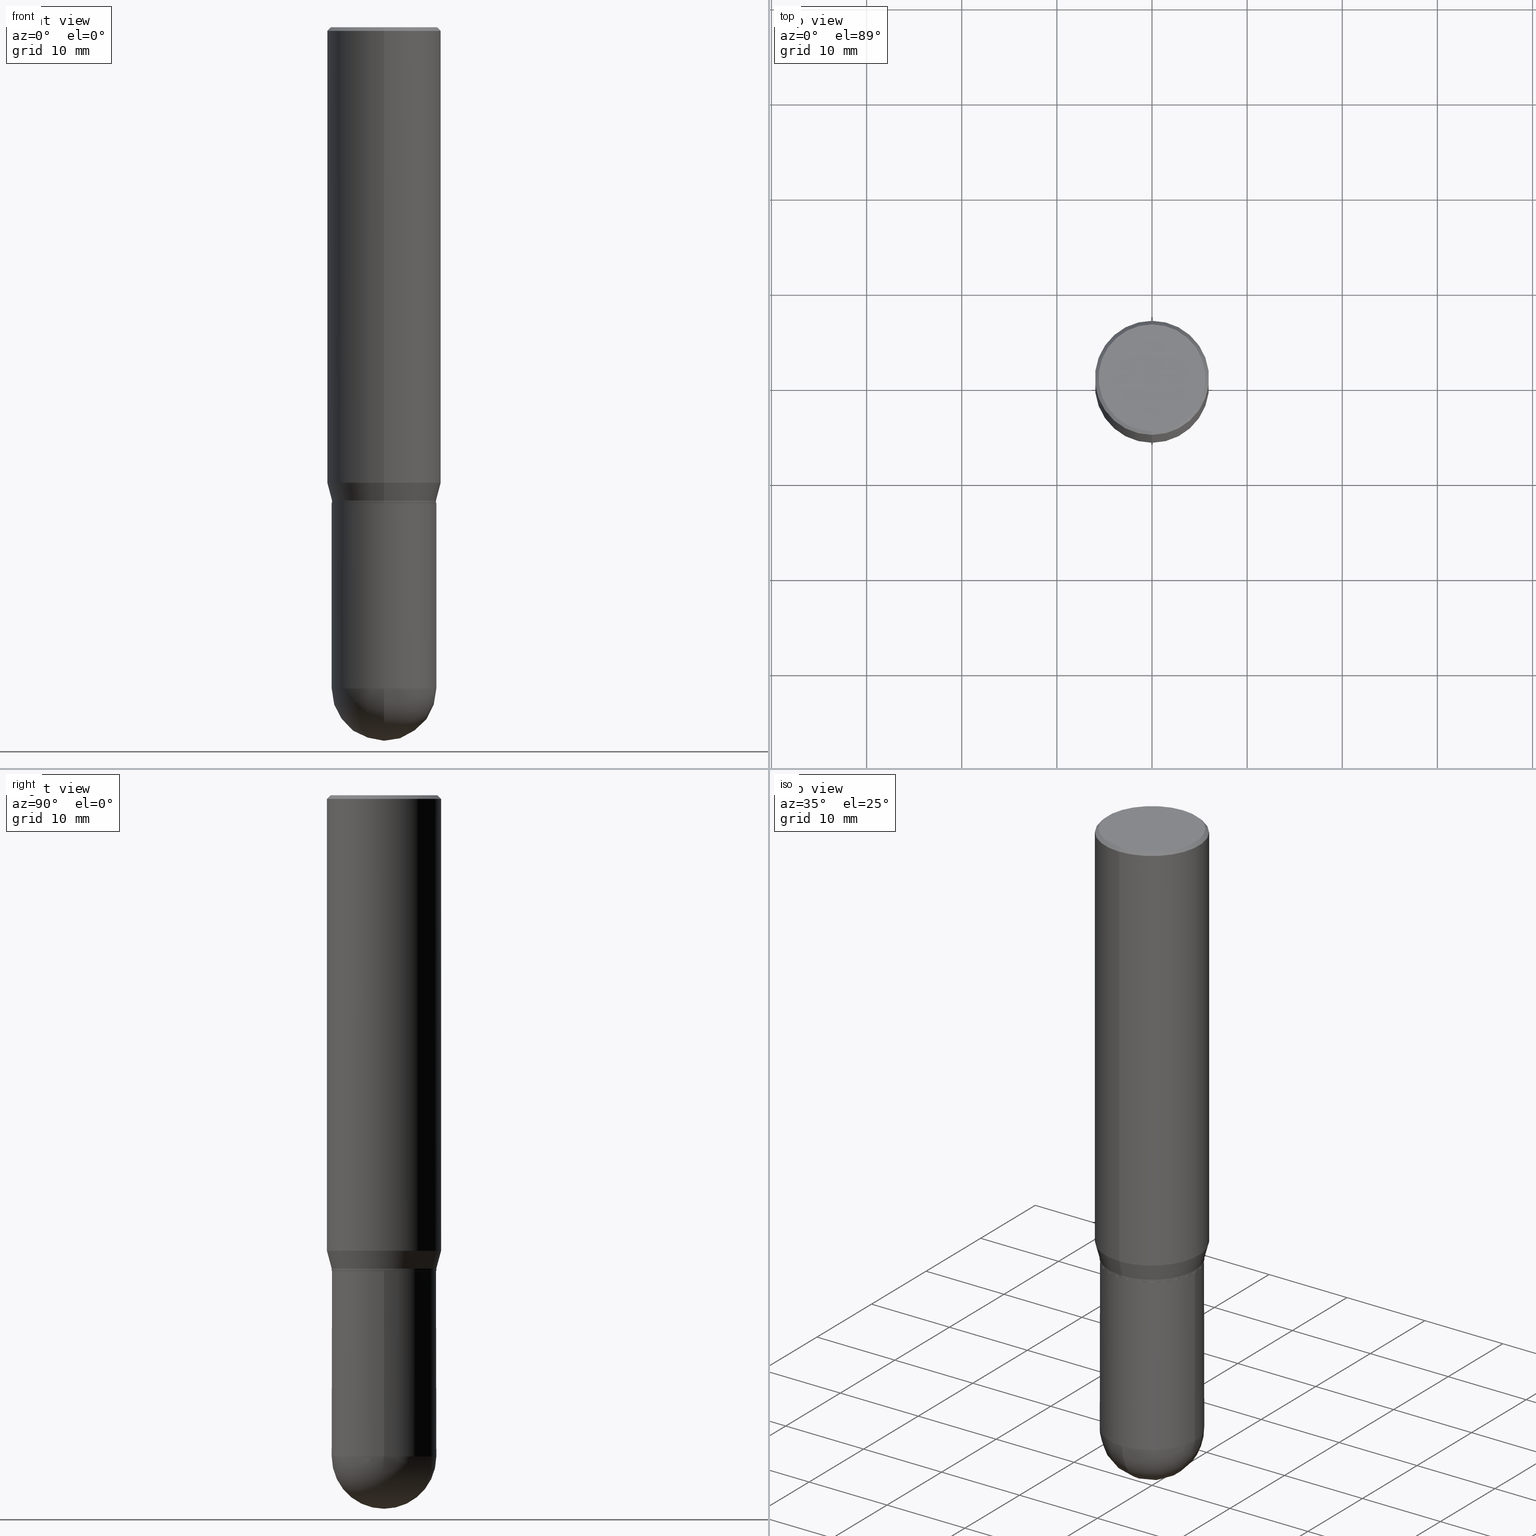
[diagram: canonical four-view strip — front | top / right | iso, engineering-drawing reading convention]
A machine part, canonical four-view strip (front | top / right | iso — engineering-drawing reading convention). The complete STEP part file that produces these views, byte-faithful:
ISO-10303-21;
HEADER;
FILE_DESCRIPTION (( 'STEP AP203' ),
    '1' );
FILE_NAME ('48834.STEP',
    '2024-03-08T13:26:36',
    ( '' ),
    ( '' ),
    'SwSTEP 2.0',
    'SolidWorks 2023',
    '' );
FILE_SCHEMA (( 'CONFIG_CONTROL_DESIGN' ));
ENDSEC;

DATA;
#1 = ORIENTED_EDGE ( 'NONE', *, *, #219, .T. ) ;
#2 = ADVANCED_FACE ( 'NONE', ( #236 ), #439, .T. ) ;
#3 = DIRECTION ( 'NONE',  ( 6.982962677686265922E-15, 1.000000000000000000, -3.491744257847858312E-15 ) ) ;
#4 = ORIENTED_EDGE ( 'NONE', *, *, #298, .F. ) ;
#5 = APPLICATION_PROTOCOL_DEFINITION ( 'international standard', 'config_control_design', 1994, #417 ) ;
#6 = DIRECTION ( 'NONE',  ( -2.445468806185136597E-29, 3.491481338843145583E-15, 1.000000000000000000 ) ) ;
#7 = DIRECTION ( 'NONE',  ( 0.000000000000000000, 0.000000000000000000, 1.000000000000000000 ) ) ;
#8 = ORIENTED_EDGE ( 'NONE', *, *, #422, .T. ) ;
#9 = CLOSED_SHELL ( 'NONE', ( #10, #65, #430, #22, #426, #266, #495, #338, #368, #124, #23, #105 ) ) ;
#10 = ADVANCED_FACE ( 'NONE', ( #278 ), #199, .T. ) ;
#11 = LINE ( 'NONE', #494, #280 ) ;
#12 = CARTESIAN_POINT ( 'NONE',  ( 3.667927816238115689E-31, -5.237616386771767056E-17, -0.01499999999999994046 ) ) ;
#13 = EDGE_CURVE ( 'NONE', #218, #18, #122, .T. ) ;
#14 = DIRECTION ( 'NONE',  ( -2.445285210825420164E-29, 3.491744257847858312E-15, 1.000000000000000000 ) ) ;
#15 = AXIS2_PLACEMENT_3D ( 'NONE', #478, #196, #366 ) ;
#16 = DIRECTION ( 'NONE',  ( -2.445285210825420164E-29, 3.491744257847858312E-15, 1.000000000000000000 ) ) ;
#17 = DATE_TIME_ROLE ( 'creation_date' ) ;
#18 = VERTEX_POINT ( 'NONE', #84 ) ;
#19 = APPROVAL ( #132, 'UNSPECIFIED' ) ;
#20 = APPROVAL_STATUS ( 'not_yet_approved' ) ;
#21 = ORIENTED_EDGE ( 'NONE', *, *, #233, .T. ) ;
#22 = ADVANCED_FACE ( 'NONE', ( #234 ), #160, .T. ) ;
#23 = ADVANCED_FACE ( 'NONE', ( #482 ), #259, .T. ) ;
#24 = AXIS2_PLACEMENT_3D ( 'NONE', #30, #231, #508 ) ;
#25 = DIRECTION ( 'NONE',  ( -2.445285210825420164E-29, 3.491744257847858312E-15, 1.000000000000000000 ) ) ;
#26 = EDGE_CURVE ( 'NONE', #410, #235, #328, .T. ) ;
#27 = CYLINDRICAL_SURFACE ( 'NONE', #24, 0.2165500000000000480 ) ;
#28 = EDGE_CURVE ( 'NONE', #18, #154, #216, .T. ) ;
#29 = CARTESIAN_POINT ( 'NONE',  ( -1.649375784469495934E-15, -0.2361999999999999933, 8.247499937036640282E-16 ) ) ;
#30 = CARTESIAN_POINT ( 'NONE',  ( 0.000000000000000000, 0.000000000000000000, 0.000000000000000000 ) ) ;
#31 = VECTOR ( 'NONE', #456, 39.37007874015748143 ) ;
#32 = VERTEX_POINT ( 'NONE', #507 ) ;
#33 = CARTESIAN_POINT ( 'NONE',  ( 3.667927816238115689E-31, -5.237616386771767056E-17, -0.01499999999999994046 ) ) ;
#34 = ORIENTED_EDGE ( 'NONE', *, *, #389, .F. ) ;
#35 = ORIENTED_EDGE ( 'NONE', *, *, #353, .T. ) ;
#36 = CARTESIAN_POINT ( 'NONE',  ( 6.691414020924076964E-29, -9.553565813409554172E-15, -2.736249999999999183 ) ) ;
#37 = DIRECTION ( 'NONE',  ( -2.445468806185136597E-29, 3.491481338843145583E-15, 1.000000000000000000 ) ) ;
#38 = ORIENTED_EDGE ( 'NONE', *, *, #133, .T. ) ;
#39 = CONICAL_SURFACE ( 'NONE', #146, 0.2361999999999999933, 0.7853981633974485010 ) ;
#40 = CARTESIAN_POINT ( 'NONE',  ( -1.649375784469495539E-15, -0.2362000000000000766, -0.01499999999999911647 ) ) ;
#41 = PRODUCT_RELATED_PRODUCT_CATEGORY ( 'detail', '', ( #172 ) ) ;
#42 = EDGE_LOOP ( 'NONE', ( #380, #501, #395, #268 ) ) ;
#43 = CIRCLE ( 'NONE', #252, 0.2165499999999999370 ) ;
#44 = DIRECTION ( 'NONE',  ( 1.839019923739599921E-15, 0.2588190451025249028, 0.9659258262890670910 ) ) ;
#45 = ORIENTED_EDGE ( 'NONE', *, *, #76, .T. ) ;
#46 = ORIENTED_EDGE ( 'NONE', *, *, #13, .F. ) ;
#47 = DIRECTION ( 'NONE',  ( -2.445285210825420164E-29, 3.491744257847858312E-15, 1.000000000000000000 ) ) ;
#48 = EDGE_CURVE ( 'NONE', #77, #248, #319, .T. ) ;
#49 = CIRCLE ( 'NONE', #350, 0.2361999999999999933 ) ;
#50 = CONICAL_SURFACE ( 'NONE', #344, 0.2165499999999996594, 0.2617993877991502405 ) ;
#51 = FACE_OUTER_BOUND ( 'NONE', #103, .T. ) ;
#52 = PLANE ( 'NONE',  #397 ) ;
#53 = CARTESIAN_POINT ( 'NONE',  ( -1.512160567852910730E-15, -0.2165500000000064873, -1.958499999999999019 ) ) ;
#54 = CARTESIAN_POINT ( 'NONE',  ( 0.2165500000000000480, -1.512160567852961414E-15, 1.055936080798610176E-29 ) ) ;
#55 = CARTESIAN_POINT ( 'NONE',  ( 4.813543937509839248E-29, -6.873498571573508138E-15, -1.968499999999999694 ) ) ;
#56 = LOCAL_TIME ( 8, 26, 36.00000000000000000, #184 ) ;
#57 = AXIS2_PLACEMENT_3D ( 'NONE', #487, #6, #96 ) ;
#58 = CARTESIAN_POINT ( 'NONE',  ( 4.813905344975440714E-29, -6.872981015512730918E-15, -1.968499999999999694 ) ) ;
#59 = DATE_TIME_ROLE ( 'classification_date' ) ;
#60 = EDGE_LOOP ( 'NONE', ( #318, #246, #140, #75 ) ) ;
#61 = PERSON_AND_ORGANIZATION ( #461, #107 ) ;
#62 = ORIENTED_EDGE ( 'NONE', *, *, #78, .F. ) ;
#63 = AXIS2_PLACEMENT_3D ( 'NONE', #241, #92, #451 ) ;
#64 = CC_DESIGN_SECURITY_CLASSIFICATION ( #208, ( #71 ) ) ;
#65 = ADVANCED_FACE ( 'NONE', ( #435 ), #406, .T. ) ;
#66 = CARTESIAN_POINT ( 'NONE',  ( 4.789091085401585240E-29, -6.838581128995030430E-15, -1.958499999999999908 ) ) ;
#67 = DIRECTION ( 'NONE',  ( 6.982962677686265922E-15, 1.000000000000000000, -2.523064413451176940E-15 ) ) ;
#68 = ORIENTED_EDGE ( 'NONE', *, *, #389, .T. ) ;
#69 = DIRECTION ( 'NONE',  ( -2.445285210825420164E-29, 3.491744257847858312E-15, 1.000000000000000000 ) ) ;
#70 = AXIS2_PLACEMENT_3D ( 'NONE', #367, #153, #274 ) ;
#71 = PRODUCT_DEFINITION_FORMATION_WITH_SPECIFIED_SOURCE ( 'ANY', '', #172, .NOT_KNOWN. ) ;
#72 = VERTEX_POINT ( 'NONE', #471 ) ;
#73 = VERTEX_POINT ( 'NONE', #452 ) ;
#74 = CARTESIAN_POINT ( 'NONE',  ( 1.536903937449144373E-15, 0.2160499999999931364, -1.968500000000000583 ) ) ;
#75 = ORIENTED_EDGE ( 'NONE', *, *, #125, .F. ) ;
#76 = EDGE_CURVE ( 'NONE', #77, #239, #93, .T. ) ;
#77 = VERTEX_POINT ( 'NONE', #493 ) ;
#78 = EDGE_CURVE ( 'NONE', #73, #248, #329, .T. ) ;
#79 = SPHERICAL_SURFACE ( 'NONE', #352, 0.2165500000000001035 ) ;
#80 = VERTEX_POINT ( 'NONE', #99 ) ;
#81 = VERTEX_POINT ( 'NONE', #139 ) ;
#82 = ADVANCED_BREP_SHAPE_REPRESENTATION ( '48834', ( #485, #144, #293 ), #424 ) ;
#83 = AXIS2_PLACEMENT_3D ( 'NONE', #36, #192, #185 ) ;
#84 = CARTESIAN_POINT ( 'NONE',  ( -1.512160567852911913E-15, -0.2165500000000067371, -1.967999999999999083 ) ) ;
#85 = CIRCLE ( 'NONE', #57, 0.2165500000000000203 ) ;
#86 = CIRCLE ( 'NONE', #321, 0.2211999999999999800 ) ;
#87 = CC_DESIGN_PERSON_AND_ORGANIZATION_ASSIGNMENT ( #343, #370, ( #172 ) ) ;
#88 = ORIENTED_EDGE ( 'NONE', *, *, #13, .T. ) ;
#89 = ORIENTED_EDGE ( 'NONE', *, *, #177, .F. ) ;
#90 = FACE_OUTER_BOUND ( 'NONE', #42, .T. ) ;
#91 = CARTESIAN_POINT ( 'NONE',  ( 1.512160567853028073E-15, 0.2165499999999904723, -2.736249999999999627 ) ) ;
#92 = DIRECTION ( 'NONE',  ( -1.000000000000000000, 6.982962677686265922E-15, -4.883557194083112340E-29 ) ) ;
#93 = LINE ( 'NONE', #54, #31 ) ;
#94 = AXIS2_PLACEMENT_3D ( 'NONE', #400, #360, #317 ) ;
#95 = APPROVAL ( #180, 'UNSPECIFIED' ) ;
#96 = DIRECTION ( 'NONE',  ( 1.000000000000000000, -6.982962677686264344E-15, 0.000000000000000000 ) ) ;
#97 = CARTESIAN_POINT ( 'NONE',  ( 0.000000000000000000, 0.000000000000000000, 0.000000000000000000 ) ) ;
#98 = DIRECTION ( 'NONE',  ( -6.982962677686265922E-15, -1.000000000000000000, 3.487819265831411744E-15 ) ) ;
#99 = CARTESIAN_POINT ( 'NONE',  ( -0.2165500000000000203, -6.674593120172645055E-15, -1.968499999999999694 ) ) ;
#100 = PERSON_AND_ORGANIZATION_ROLE ( 'creator' ) ;
#101 = AXIS2_PLACEMENT_3D ( 'NONE', #402, #37, #509 ) ;
#102 = SHAPE_DEFINITION_REPRESENTATION ( #386, #82 ) ;
#103 = EDGE_LOOP ( 'NONE', ( #279, #512 ) ) ;
#104 = CALENDAR_DATE ( 2024, 8, 3 ) ;
#105 = ADVANCED_FACE ( 'NONE', ( #294 ), #455, .T. ) ;
#106 = VERTEX_POINT ( 'NONE', #382 ) ;
#107 = ORGANIZATION ( 'UNSPECIFIED', 'UNSPECIFIED', '' ) ;
#108 = DIRECTION ( 'NONE',  ( -2.445285210825420164E-29, 3.491744257847858312E-15, 1.000000000000000000 ) ) ;
#109 = AXIS2_PLACEMENT_3D ( 'NONE', #167, #134, #130 ) ;
#110 = COORDINATED_UNIVERSAL_TIME_OFFSET ( 5, 0, .BEHIND. ) ;
#111 = DIRECTION ( 'NONE',  ( -6.982962677686266711E-15, -1.000000000000000000, 3.491744257847858312E-15 ) ) ;
#112 = CYLINDRICAL_SURFACE ( 'NONE', #242, 0.2361999999999999933 ) ;
#113 = ORIENTED_EDGE ( 'NONE', *, *, #28, .F. ) ;
#114 = EDGE_CURVE ( 'NONE', #385, #235, #170, .T. ) ;
#115 = CIRCLE ( 'NONE', #446, 0.2165500000000000203 ) ;
#116 = DIRECTION ( 'NONE',  ( -2.445285210825420164E-29, 3.491744257847858312E-15, 1.000000000000000000 ) ) ;
#117 = AXIS2_PLACEMENT_3D ( 'NONE', #470, #466, #111 ) ;
#118 = DIRECTION ( 'NONE',  ( -2.445285210825420164E-29, 3.491744257847858312E-15, 1.000000000000000000 ) ) ;
#119 = CARTESIAN_POINT ( 'NONE',  ( 4.789091085401585240E-29, -6.838581128995030430E-15, -1.958499999999999908 ) ) ;
#120 = EDGE_LOOP ( 'NONE', ( #374, #301, #404, #191 ) ) ;
#121 = ORIENTED_EDGE ( 'NONE', *, *, #217, .T. ) ;
#122 = LINE ( 'NONE', #480, #128 ) ;
#123 = EDGE_LOOP ( 'NONE', ( #34, #4, #351, #1 ) ) ;
#124 = ADVANCED_FACE ( 'NONE', ( #288 ), #52, .F. ) ;
#125 = EDGE_CURVE ( 'NONE', #235, #385, #309, .T. ) ;
#126 = LINE ( 'NONE', #136, #510 ) ;
#127 = CARTESIAN_POINT ( 'NONE',  ( 4.812321294904427164E-29, -6.871752699444585120E-15, -1.967999999999999972 ) ) ;
#128 = VECTOR ( 'NONE', #475, 39.37007874015748854 ) ;
#129 = ORIENTED_EDGE ( 'NONE', *, *, #459, .T. ) ;
#130 = DIRECTION ( 'NONE',  ( 1.000000000000000000, -6.982962677686263555E-15, 0.000000000000000000 ) ) ;
#131 = DIRECTION ( 'NONE',  ( 1.000000000000000000, -6.982962677686264344E-15, 0.000000000000000000 ) ) ;
#132 = APPROVAL_STATUS ( 'not_yet_approved' ) ;
#133 = EDGE_CURVE ( 'NONE', #80, #239, #85, .T. ) ;
#134 = DIRECTION ( 'NONE',  ( -2.445468806185136597E-29, 3.491481338843145583E-15, 1.000000000000000000 ) ) ;
#135 = DIRECTION ( 'NONE',  ( -2.445285210825420164E-29, 3.491744257847858312E-15, 1.000000000000000000 ) ) ;
#136 = CARTESIAN_POINT ( 'NONE',  ( -0.2165500000000000480, 1.538680294288497294E-15, -1.065195393794700063E-29 ) ) ;
#137 = DIRECTION ( 'NONE',  ( -2.445285210825420164E-29, 3.491744257847858312E-15, 1.000000000000000000 ) ) ;
#138 = CIRCLE ( 'NONE', #273, 0.2165500000000000480 ) ;
#139 = CARTESIAN_POINT ( 'NONE',  ( 1.678301941865403134E-15, 0.2361999999999999655, -0.01500000000000076446 ) ) ;
#140 = ORIENTED_EDGE ( 'NONE', *, *, #388, .T. ) ;
#141 = DIRECTION ( 'NONE',  ( -6.982962677686265922E-15, -1.000000000000000000, 3.487819265831411744E-15 ) ) ;
#142 = COORDINATED_UNIVERSAL_TIME_OFFSET ( 5, 0, .BEHIND. ) ;
#143 = EDGE_LOOP ( 'NONE', ( #322, #129, #88, #361 ) ) ;
#144 = MANIFOLD_SOLID_BREP ( 'Body-Move/Copy2[2]', #9 ) ;
#145 = AXIS2_PLACEMENT_3D ( 'NONE', #12, #16, #98 ) ;
#146 = AXIS2_PLACEMENT_3D ( 'NONE', #33, #503, #267 ) ;
#147 = APPROVAL_DATE_TIME ( #296, #95 ) ;
#148 = PERSON_AND_ORGANIZATION ( #461, #107 ) ;
#149 = COORDINATED_UNIVERSAL_TIME_OFFSET ( 5, 0, .BEHIND. ) ;
#150 = CIRCLE ( 'NONE', #117, 0.2211999999999999800 ) ;
#151 = CARTESIAN_POINT ( 'NONE',  ( 1.649375784469496525E-15, 0.2361999999999999378, -0.01500000000000076446 ) ) ;
#152 = DIRECTION ( 'NONE',  ( -6.982962677686265922E-15, -1.000000000000000000, 3.784596620176773299E-15 ) ) ;
#153 = DIRECTION ( 'NONE',  ( -2.445285210825420164E-29, 3.491744257847858312E-15, 1.000000000000000000 ) ) ;
#154 = VERTEX_POINT ( 'NONE', #345 ) ;
#155 = EDGE_LOOP ( 'NONE', ( #364, #355, #244, #263 ) ) ;
#156 = DIRECTION ( 'NONE',  ( -6.982962677686265922E-15, -1.000000000000000000, 3.491744257847858706E-15 ) ) ;
#157 = DIRECTION ( 'NONE',  ( -6.982962677686265922E-15, -1.000000000000000000, 3.491744257847857918E-15 ) ) ;
#158 = CARTESIAN_POINT ( 'NONE',  ( 0.000000000000000000, 0.000000000000000000, 0.000000000000000000 ) ) ;
#159 = DIRECTION ( 'NONE',  ( -1.807323732225329745E-15, -0.2588190451025181305, 0.9659258262890689783 ) ) ;
#160 = CYLINDRICAL_SURFACE ( 'NONE', #445, 0.2361999999999999933 ) ;
#161 = CARTESIAN_POINT ( 'NONE',  ( -1.512160567852959442E-15, -0.2165499999999997982, 7.561372190369530887E-16 ) ) ;
#162 = PERSON_AND_ORGANIZATION ( #461, #107 ) ;
#163 = AXIS2_PLACEMENT_3D ( 'NONE', #127, #448, #204 ) ;
#164 = SPHERICAL_SURFACE ( 'NONE', #63, 0.2165500000000001035 ) ;
#165 = CARTESIAN_POINT ( 'NONE',  ( 3.667927816238115689E-31, -5.237616386771767056E-17, -0.01499999999999994046 ) ) ;
#166 = DIMENSIONAL_EXPONENTS ( 1.000000000000000000, 0.000000000000000000, 0.000000000000000000, 0.000000000000000000, 0.000000000000000000, 0.000000000000000000, 0.000000000000000000 ) ;
#167 = CARTESIAN_POINT ( 'NONE',  ( 6.691414020924076964E-29, -9.553565813409554172E-15, -2.736249999999999183 ) ) ;
#168 = DIRECTION ( 'NONE',  ( -1.000000000000000000, 6.982962677686265922E-15, -4.876176775795935793E-29 ) ) ;
#169 = CARTESIAN_POINT ( 'NONE',  ( 1.512160567853008943E-15, 0.2165499999999931369, -1.968500000000000583 ) ) ;
#170 = CIRCLE ( 'NONE', #506, 0.2361999999999999933 ) ;
#171 = AXIS2_PLACEMENT_3D ( 'NONE', #409, #253, #3 ) ;
#172 = PRODUCT ( '48834', '48834', '', ( #247 ) ) ;
#173 = EDGE_CURVE ( 'NONE', #154, #410, #11, .T. ) ;
#174 = DIRECTION ( 'NONE',  ( 2.438088387897960049E-29, -3.491481338843145188E-15, -1.000000000000000000 ) ) ;
#175 = CALENDAR_DATE ( 2024, 8, 3 ) ;
#176 = APPROVAL_ROLE ( '' ) ;
#177 = EDGE_CURVE ( 'NONE', #277, #81, #375, .T. ) ;
#178 = APPLICATION_CONTEXT ( 'configuration controlled 3d designs of mechanical parts and assemblies' ) ;
#179 = DIRECTION ( 'NONE',  ( -6.982962677686265922E-15, -1.000000000000000000, 3.784596620176773299E-15 ) ) ;
#180 = APPROVAL_STATUS ( 'not_yet_approved' ) ;
#181 = AXIS2_PLACEMENT_3D ( 'NONE', #431, #228, #306 ) ;
#182 = ADVANCED_FACE ( 'NONE', ( #337 ), #484, .F. ) ;
#183 = CALENDAR_DATE ( 2024, 8, 3 ) ;
#184 = COORDINATED_UNIVERSAL_TIME_OFFSET ( 5, 0, .BEHIND. ) ;
#185 = DIRECTION ( 'NONE',  ( 1.000000000000000000, -6.982962677686263555E-15, 0.000000000000000000 ) ) ;
#186 = DIRECTION ( 'NONE',  ( -2.445285210825420164E-29, 3.491744257847858312E-15, 1.000000000000000000 ) ) ;
#187 = ORIENTED_EDGE ( 'NONE', *, *, #511, .T. ) ;
#188 = EDGE_CURVE ( 'NONE', #289, #154, #342, .T. ) ;
#189 = CARTESIAN_POINT ( 'NONE',  ( -1.568995892090348679E-15, -0.2211999999999999800, 8.327766115919414367E-16 ) ) ;
#190 = CARTESIAN_POINT ( 'NONE',  ( 0.000000000000000000, 0.000000000000000000, 0.000000000000000000 ) ) ;
#191 = ORIENTED_EDGE ( 'NONE', *, *, #219, .F. ) ;
#192 = DIRECTION ( 'NONE',  ( -2.445468806185136597E-29, 3.491481338843145583E-15, 1.000000000000000000 ) ) ;
#193 = EDGE_LOOP ( 'NONE', ( #62, #121, #304, #477 ) ) ;
#194 = ORIENTED_EDGE ( 'NONE', *, *, #275, .T. ) ;
#195 = AXIS2_PLACEMENT_3D ( 'NONE', #224, #25, #179 ) ;
#196 = DIRECTION ( 'NONE',  ( -2.445285210825420164E-29, 3.491744257847858312E-15, 1.000000000000000000 ) ) ;
#197 = AXIS2_PLACEMENT_3D ( 'NONE', #418, #292, #213 ) ;
#198 = APPROVAL_PERSON_ORGANIZATION ( #148, #95, #176 ) ;
#199 = CYLINDRICAL_SURFACE ( 'NONE', #250, 0.2165499999999997982 ) ;
#200 =( LENGTH_UNIT ( ) NAMED_UNIT ( * ) SI_UNIT ( $, .METRE. ) );
#201 = EDGE_LOOP ( 'NONE', ( #222, #472 ) ) ;
#202 = ORIENTED_EDGE ( 'NONE', *, *, #462, .T. ) ;
#203 = DIRECTION ( 'NONE',  ( -4.851104656540965064E-15, -0.7071067811865501263, -0.7071067811865449082 ) ) ;
#204 = DIRECTION ( 'NONE',  ( -6.982962677686265922E-15, -1.000000000000000000, 3.784596620176768566E-15 ) ) ;
#205 = ORIENTED_EDGE ( 'NONE', *, *, #114, .T. ) ;
#206 = VECTOR ( 'NONE', #254, 39.37007874015748854 ) ;
#207 = CARTESIAN_POINT ( 'NONE',  ( -1.508669086514069695E-15, -0.2160500000000068754, -1.968499999999999028 ) ) ;
#208 = SECURITY_CLASSIFICATION ( '', '', #419 ) ;
#209 = ORIENTED_EDGE ( 'NONE', *, *, #177, .T. ) ;
#210 = DIRECTION ( 'NONE',  ( 1.000000000000000000, -6.982962677686263555E-15, 0.000000000000000000 ) ) ;
#211 = CARTESIAN_POINT ( 'NONE',  ( 4.609766587511666285E-29, -6.582514767890587986E-15, -1.885165201631270548 ) ) ;
#212 = APPLICATION_PROTOCOL_DEFINITION ( 'international standard', 'config_control_design', 1994, #178 ) ;
#213 = DIRECTION ( 'NONE',  ( 6.982962677686265922E-15, 1.000000000000000000, 0.000000000000000000 ) ) ;
#214 = DIRECTION ( 'NONE',  ( -6.982962677686265922E-15, -1.000000000000000000, 3.491744257847858312E-15 ) ) ;
#215 = PERSON_AND_ORGANIZATION_ROLE ( 'creator' ) ;
#216 = CIRCLE ( 'NONE', #163, 0.2165499999999999370 ) ;
#217 = EDGE_CURVE ( 'NONE', #73, #505, #498, .T. ) ;
#218 = VERTEX_POINT ( 'NONE', #207 ) ;
#219 = EDGE_CURVE ( 'NONE', #81, #277, #49, .T. ) ;
#220 = DATE_AND_TIME ( #175, #56 ) ;
#221 = CC_DESIGN_APPROVAL ( #19, ( #227 ) ) ;
#222 = ORIENTED_EDGE ( 'NONE', *, *, #511, .F. ) ;
#223 = AXIS2_PLACEMENT_3D ( 'NONE', #333, #453, #287 ) ;
#224 = CARTESIAN_POINT ( 'NONE',  ( 4.789091085401585240E-29, -6.838581128995030430E-15, -1.958499999999999908 ) ) ;
#225 = ORIENTED_EDGE ( 'NONE', *, *, #78, .T. ) ;
#226 = EDGE_CURVE ( 'NONE', #239, #80, #115, .T. ) ;
#227 = PRODUCT_DEFINITION ( 'UNKNOWN', '', #71, #423 ) ;
#228 = DIRECTION ( 'NONE',  ( -2.445285210825420164E-29, 3.491744257847858312E-15, 1.000000000000000000 ) ) ;
#229 = CARTESIAN_POINT ( 'NONE',  ( 6.672895394931898871E-29, -9.580085539845092024E-15, -2.736249999999999627 ) ) ;
#230 = ORIENTED_EDGE ( 'NONE', *, *, #297, .F. ) ;
#231 = DIRECTION ( 'NONE',  ( -2.445468806185136597E-29, 3.491481338843145583E-15, 1.000000000000000000 ) ) ;
#232 = CARTESIAN_POINT ( 'NONE',  ( 4.812321294904427164E-29, -6.871752699444585120E-15, -1.967999999999999972 ) ) ;
#233 = EDGE_CURVE ( 'NONE', #18, #106, #373, .T. ) ;
#234 = FACE_OUTER_BOUND ( 'NONE', #282, .T. ) ;
#235 = VERTEX_POINT ( 'NONE', #331 ) ;
#236 = FACE_OUTER_BOUND ( 'NONE', #442, .T. ) ;
#237 = ORIENTED_EDGE ( 'NONE', *, *, #291, .F. ) ;
#238 = ORIENTED_EDGE ( 'NONE', *, *, #469, .F. ) ;
#239 = VERTEX_POINT ( 'NONE', #450 ) ;
#240 = VECTOR ( 'NONE', #159, 39.37007874015748143 ) ;
#241 = CARTESIAN_POINT ( 'NONE',  ( 6.672895394931898871E-29, -9.580085539845092024E-15, -2.736249999999999627 ) ) ;
#242 = AXIS2_PLACEMENT_3D ( 'NONE', #269, #398, #157 ) ;
#243 = DIRECTION ( 'NONE',  ( -6.982962677686265922E-15, -1.000000000000000000, 3.491744257847857918E-15 ) ) ;
#244 = ORIENTED_EDGE ( 'NONE', *, *, #436, .F. ) ;
#245 = PLANE ( 'NONE',  #171 ) ;
#246 = ORIENTED_EDGE ( 'NONE', *, *, #286, .T. ) ;
#247 = MECHANICAL_CONTEXT ( 'NONE', #178, 'mechanical' ) ;
#248 = VERTEX_POINT ( 'NONE', #91 ) ;
#249 = CARTESIAN_POINT ( 'NONE',  ( 1.535127580609744318E-15, 0.2160499999999931364, -1.968500000000000583 ) ) ;
#250 = AXIS2_PLACEMENT_3D ( 'NONE', #158, #118, #156 ) ;
#251 = CARTESIAN_POINT ( 'NONE',  ( 0.000000000000000000, 0.000000000000000000, 0.000000000000000000 ) ) ;
#252 = AXIS2_PLACEMENT_3D ( 'NONE', #232, #116, #316 ) ;
#253 = DIRECTION ( 'NONE',  ( 2.445285210825419883E-29, -3.491744257847858312E-15, -1.000000000000000000 ) ) ;
#254 = DIRECTION ( 'NONE',  ( 5.024295867788231995E-15, 0.7071067811865739960, 0.7071067811865208164 ) ) ;
#255 = DIRECTION ( 'NONE',  ( 1.000000000000000000, 0.000000000000000000, 0.000000000000000000 ) ) ;
#256 = DIRECTION ( 'NONE',  ( -6.982962677686265922E-15, -1.000000000000000000, 3.491744257847858706E-15 ) ) ;
#257 = DIRECTION ( 'NONE',  ( -2.445285210825420164E-29, 3.491744257847858312E-15, 1.000000000000000000 ) ) ;
#258 = PERSON_AND_ORGANIZATION ( #461, #107 ) ;
#259 = CONICAL_SURFACE ( 'NONE', #70, 0.2160500000000000198, 0.7853981633974824739 ) ;
#260 = EDGE_LOOP ( 'NONE', ( #238, #68, #209, #230 ) ) ;
#261 = COORDINATED_UNIVERSAL_TIME_OFFSET ( 5, 0, .BEHIND. ) ;
#262 = AXIS2_PLACEMENT_3D ( 'NONE', #119, #399, #359 ) ;
#263 = ORIENTED_EDGE ( 'NONE', *, *, #233, .F. ) ;
#264 = VECTOR ( 'NONE', #203, 39.37007874015748143 ) ;
#265 = CC_DESIGN_PERSON_AND_ORGANIZATION_ASSIGNMENT ( #61, #100, ( #227 ) ) ;
#266 = ADVANCED_FACE ( 'NONE', ( #416 ), #50, .T. ) ;
#267 = DIRECTION ( 'NONE',  ( 6.982962677686265922E-15, 1.000000000000000000, -3.487819265831411744E-15 ) ) ;
#268 = ORIENTED_EDGE ( 'NONE', *, *, #388, .F. ) ;
#269 = CARTESIAN_POINT ( 'NONE',  ( 0.000000000000000000, 0.000000000000000000, 0.000000000000000000 ) ) ;
#270 = DIRECTION ( 'NONE',  ( 1.000000000000000000, -6.982962677686263555E-15, 0.000000000000000000 ) ) ;
#271 = ADVANCED_FACE ( 'NONE', ( #474 ), #79, .T. ) ;
#272 = AXIS2_PLACEMENT_3D ( 'NONE', #489, #454, #285 ) ;
#273 = AXIS2_PLACEMENT_3D ( 'NONE', #369, #414, #210 ) ;
#274 = DIRECTION ( 'NONE',  ( -6.982962677686265922E-15, -1.000000000000000000, 3.793355233044567490E-15 ) ) ;
#275 = EDGE_CURVE ( 'NONE', #154, #18, #43, .T. ) ;
#276 = ORIENTED_EDGE ( 'NONE', *, *, #335, .F. ) ;
#277 = VERTEX_POINT ( 'NONE', #40 ) ;
#278 = FACE_OUTER_BOUND ( 'NONE', #155, .T. ) ;
#279 = ORIENTED_EDGE ( 'NONE', *, *, #298, .T. ) ;
#280 = VECTOR ( 'NONE', #135, 39.37007874015748143 ) ;
#281 = FACE_OUTER_BOUND ( 'NONE', #123, .T. ) ;
#282 = EDGE_LOOP ( 'NONE', ( #205, #8, #89, #237 ) ) ;
#283 = ORIENTED_EDGE ( 'NONE', *, *, #188, .T. ) ;
#284 = DIRECTION ( 'NONE',  ( -2.445285210825420164E-29, 3.491744257847858312E-15, 1.000000000000000000 ) ) ;
#285 = DIRECTION ( 'NONE',  ( -7.105427357601001070E-15, -1.000000000000000000, 0.000000000000000000 ) ) ;
#286 = EDGE_CURVE ( 'NONE', #410, #106, #492, .T. ) ;
#287 = DIRECTION ( 'NONE',  ( 6.982962677686265922E-15, 1.000000000000000000, -3.487819265831411744E-15 ) ) ;
#288 = FACE_OUTER_BOUND ( 'NONE', #201, .T. ) ;
#289 = VERTEX_POINT ( 'NONE', #74 ) ;
#290 = VECTOR ( 'NONE', #186, 39.37007874015748143 ) ;
#291 = EDGE_CURVE ( 'NONE', #385, #277, #479, .T. ) ;
#292 = DIRECTION ( 'NONE',  ( 1.000000000000000000, -6.982962677686265922E-15, 4.883557194083112340E-29 ) ) ;
#293 = AXIS2_PLACEMENT_3D ( 'NONE', #97, #7, #255 ) ;
#294 = FACE_OUTER_BOUND ( 'NONE', #433, .T. ) ;
#295 = DIRECTION ( 'NONE',  ( -2.445468806185136597E-29, 3.491481338843145583E-15, 1.000000000000000000 ) ) ;
#296 = DATE_AND_TIME ( #183, #376 ) ;
#297 = EDGE_CURVE ( 'NONE', #72, #81, #356, .T. ) ;
#298 = EDGE_CURVE ( 'NONE', #72, #488, #150, .T. ) ;
#299 = CALENDAR_DATE ( 2024, 8, 3 ) ;
#300 = AXIS2_PLACEMENT_3D ( 'NONE', #211, #379, #377 ) ;
#301 = ORIENTED_EDGE ( 'NONE', *, *, #125, .T. ) ;
#302 = VECTOR ( 'NONE', #312, 39.37007874015748143 ) ;
#303 = APPROVAL_DATE_TIME ( #504, #19 ) ;
#304 = ORIENTED_EDGE ( 'NONE', *, *, #462, .F. ) ;
#305 = CC_DESIGN_DATE_AND_TIME_ASSIGNMENT ( #496, #17, ( #227 ) ) ;
#306 = DIRECTION ( 'NONE',  ( -6.982962677686265922E-15, -1.000000000000000000, 3.793355233044567490E-15 ) ) ;
#307 = DATE_AND_TIME ( #387, #490 ) ;
#308 = CIRCLE ( 'NONE', #83, 0.2165500000000000480 ) ;
#309 = CIRCLE ( 'NONE', #300, 0.2361999999999999933 ) ;
#310 = UNCERTAINTY_MEASURE_WITH_UNIT (LENGTH_MEASURE( 1.000000000000000082E-05 ), #476, 'distance_accuracy_value', 'NONE');
#311 = VECTOR ( 'NONE', #334, 39.37007874015748143 ) ;
#312 = DIRECTION ( 'NONE',  ( 4.937700262164548831E-15, 0.7071067811865452413, -0.7071067811865497932 ) ) ;
#313 = DIRECTION ( 'NONE',  ( -6.982962677686266711E-15, -1.000000000000000000, 3.491744257847858312E-15 ) ) ;
#314 = DIRECTION ( 'NONE',  ( -1.000000000000000000, 6.982962677686265922E-15, -4.883557194083112340E-29 ) ) ;
#315 = CARTESIAN_POINT ( 'NONE',  ( 6.691414020924076964E-29, -9.553565813409554172E-15, -2.736249999999999183 ) ) ;
#316 = DIRECTION ( 'NONE',  ( -6.982962677686265922E-15, -1.000000000000000000, 3.784596620176768566E-15 ) ) ;
#317 = DIRECTION ( 'NONE',  ( -6.982962677686265922E-15, -1.000000000000000000, 3.793355233044567490E-15 ) ) ;
#318 = ORIENTED_EDGE ( 'NONE', *, *, #26, .F. ) ;
#319 = CIRCLE ( 'NONE', #341, 0.2165500000000000480 ) ;
#320 = ADVANCED_FACE ( 'NONE', ( #486 ), #164, .T. ) ;
#321 = AXIS2_PLACEMENT_3D ( 'NONE', #463, #108, #313 ) ;
#322 = ORIENTED_EDGE ( 'NONE', *, *, #188, .F. ) ;
#323 = LENGTH_MEASURE_WITH_UNIT ( LENGTH_MEASURE( 0.02539999999999999897 ), #200 );
#324 = ORIENTED_EDGE ( 'NONE', *, *, #358, .T. ) ;
#325 = CARTESIAN_POINT ( 'NONE',  ( -1.538680294288430240E-15, -0.2165500000000096792, -2.736249999999998295 ) ) ;
#326 = ORIENTED_EDGE ( 'NONE', *, *, #48, .F. ) ;
#327 = LINE ( 'NONE', #481, #264 ) ;
#328 = LINE ( 'NONE', #408, #425 ) ;
#329 = CIRCLE ( 'NONE', #197, 0.2165500000000001035 ) ;
#330 = CARTESIAN_POINT ( 'NONE',  ( 1.678301941865356394E-15, 0.2361999999999999933, -8.247499937036640282E-16 ) ) ;
#331 = CARTESIAN_POINT ( 'NONE',  ( 1.678301941865402543E-15, 0.2361999999999934430, -1.885165201631271215 ) ) ;
#332 = EDGE_LOOP ( 'NONE', ( #444, #225, #326, #276 ) ) ;
#333 = CARTESIAN_POINT ( 'NONE',  ( 3.667927816238115689E-31, -5.237616386771767056E-17, -0.01499999999999994046 ) ) ;
#334 = DIRECTION ( 'NONE',  ( -2.445285210825420164E-29, 3.491744257847858312E-15, 1.000000000000000000 ) ) ;
#335 = EDGE_CURVE ( 'NONE', #505, #77, #413, .T. ) ;
#336 = LINE ( 'NONE', #53, #240 ) ;
#337 = FACE_OUTER_BOUND ( 'NONE', #411, .T. ) ;
#338 = ADVANCED_FACE ( 'NONE', ( #281 ), #407, .T. ) ;
#339 = CIRCLE ( 'NONE', #181, 0.2160500000000000198 ) ;
#340 = APPROVAL_PERSON_ORGANIZATION ( #258, #421, #384 ) ;
#341 = AXIS2_PLACEMENT_3D ( 'NONE', #315, #468, #270 ) ;
#342 = LINE ( 'NONE', #249, #206 ) ;
#343 = PERSON_AND_ORGANIZATION ( #461, #107 ) ;
#344 = AXIS2_PLACEMENT_3D ( 'NONE', #412, #47, #434 ) ;
#345 = CARTESIAN_POINT ( 'NONE',  ( 1.538680294288544822E-15, 0.2165499999999931369, -1.968000000000000638 ) ) ;
#346 = APPROVAL_ROLE ( '' ) ;
#347 = CC_DESIGN_PERSON_AND_ORGANIZATION_ASSIGNMENT ( #457, #391, ( #71 ) ) ;
#348 = PERSON_AND_ORGANIZATION_ROLE ( 'classification_officer' ) ;
#349 = PERSON_AND_ORGANIZATION ( #461, #107 ) ;
#350 = AXIS2_PLACEMENT_3D ( 'NONE', #165, #137, #141 ) ;
#351 = ORIENTED_EDGE ( 'NONE', *, *, #297, .T. ) ;
#352 = AXIS2_PLACEMENT_3D ( 'NONE', #229, #314, #67 ) ;
#353 = EDGE_CURVE ( 'NONE', #248, #32, #138, .T. ) ;
#354 = PERSON_AND_ORGANIZATION ( #461, #107 ) ;
#355 = ORIENTED_EDGE ( 'NONE', *, *, #173, .T. ) ;
#356 = LINE ( 'NONE', #151, #302 ) ;
#357 =( NAMED_UNIT ( * ) SI_UNIT ( $, .STERADIAN. ) SOLID_ANGLE_UNIT ( ) );
#358 = EDGE_CURVE ( 'NONE', #32, #80, #126, .T. ) ;
#359 = DIRECTION ( 'NONE',  ( -6.982962677686265922E-15, -1.000000000000000000, 3.784596620176773299E-15 ) ) ;
#360 = DIRECTION ( 'NONE',  ( -2.445285210825420164E-29, 3.491744257847858312E-15, 1.000000000000000000 ) ) ;
#361 = ORIENTED_EDGE ( 'NONE', *, *, #275, .F. ) ;
#362 = EDGE_LOOP ( 'NONE', ( #35, #324, #449, #443, #393 ) ) ;
#363 = VECTOR ( 'NONE', #284, 39.37007874015748143 ) ;
#364 = ORIENTED_EDGE ( 'NONE', *, *, #28, .T. ) ;
#365 = APPROVAL_PERSON_ORGANIZATION ( #162, #19, #346 ) ;
#366 = DIRECTION ( 'NONE',  ( -6.982962677686265922E-15, -1.000000000000000000, 3.793355233044567490E-15 ) ) ;
#367 = CARTESIAN_POINT ( 'NONE',  ( 4.813543937509839248E-29, -6.873498571573508138E-15, -1.968499999999999694 ) ) ;
#368 = ADVANCED_FACE ( 'NONE', ( #51 ), #245, .F. ) ;
#369 = CARTESIAN_POINT ( 'NONE',  ( 6.691414020924076964E-29, -9.553565813409554172E-15, -2.736249999999999183 ) ) ;
#370 = PERSON_AND_ORGANIZATION_ROLE ( 'design_owner' ) ;
#371 = ORIENTED_EDGE ( 'NONE', *, *, #335, .T. ) ;
#372 = LINE ( 'NONE', #330, #363 ) ;
#373 = LINE ( 'NONE', #161, #311 ) ;
#374 = ORIENTED_EDGE ( 'NONE', *, *, #422, .F. ) ;
#375 = CIRCLE ( 'NONE', #145, 0.2361999999999999933 ) ;
#376 = LOCAL_TIME ( 8, 26, 36.00000000000000000, #142 ) ;
#377 = DIRECTION ( 'NONE',  ( -6.982962677686265922E-15, -1.000000000000000000, 3.469747663417777397E-15 ) ) ;
#378 = CARTESIAN_POINT ( 'NONE',  ( -1.649375784469449785E-15, -0.2362000000000065436, -1.885165201631269660 ) ) ;
#379 = DIRECTION ( 'NONE',  ( -2.445285210825420164E-29, 3.491744257847858312E-15, 1.000000000000000000 ) ) ;
#380 = ORIENTED_EDGE ( 'NONE', *, *, #436, .T. ) ;
#381 = DIRECTION ( 'NONE',  ( -2.445468806185136877E-29, 3.491481338843145188E-15, 1.000000000000000000 ) ) ;
#382 = CARTESIAN_POINT ( 'NONE',  ( -1.512160567852910730E-15, -0.2165500000000064873, -1.958499999999999019 ) ) ;
#383 = DIRECTION ( 'NONE',  ( -6.982962677686265922E-15, -1.000000000000000000, 3.469747663417777397E-15 ) ) ;
#384 = APPROVAL_ROLE ( '' ) ;
#385 = VERTEX_POINT ( 'NONE', #378 ) ;
#386 = PRODUCT_DEFINITION_SHAPE ( 'NONE', 'NONE',  #227 ) ;
#387 = CALENDAR_DATE ( 2024, 8, 3 ) ;
#388 = EDGE_CURVE ( 'NONE', #106, #385, #336, .T. ) ;
#389 = EDGE_CURVE ( 'NONE', #488, #277, #327, .T. ) ;
#390 = CC_DESIGN_APPROVAL ( #421, ( #208 ) ) ;
#391 = PERSON_AND_ORGANIZATION_ROLE ( 'design_supplier' ) ;
#392 = CLOSED_SHELL ( 'NONE', ( #458, #271, #182, #320, #2 ) ) ;
#393 = ORIENTED_EDGE ( 'NONE', *, *, #48, .T. ) ;
#394 = CIRCLE ( 'NONE', #15, 0.2160500000000000198 ) ;
#395 = ORIENTED_EDGE ( 'NONE', *, *, #114, .F. ) ;
#396 =( NAMED_UNIT ( * ) PLANE_ANGLE_UNIT ( ) SI_UNIT ( $, .RADIAN. ) );
#397 = AXIS2_PLACEMENT_3D ( 'NONE', #55, #420, #214 ) ;
#398 = DIRECTION ( 'NONE',  ( -2.445285210825420164E-29, 3.491744257847858312E-15, 1.000000000000000000 ) ) ;
#399 = DIRECTION ( 'NONE',  ( -2.445285210825420164E-29, 3.491744257847858312E-15, 1.000000000000000000 ) ) ;
#400 = CARTESIAN_POINT ( 'NONE',  ( 4.813543937509839248E-29, -6.873498571573508138E-15, -1.968499999999999694 ) ) ;
#401 = FACE_OUTER_BOUND ( 'NONE', #362, .T. ) ;
#402 = CARTESIAN_POINT ( 'NONE',  ( 0.000000000000000000, 0.000000000000000000, 0.000000000000000000 ) ) ;
#403 = EDGE_LOOP ( 'NONE', ( #187, #283, #113, #46 ) ) ;
#404 = ORIENTED_EDGE ( 'NONE', *, *, #291, .T. ) ;
#405 = LOCAL_TIME ( 8, 26, 36.00000000000000000, #110 ) ;
#406 = CONICAL_SURFACE ( 'NONE', #94, 0.2160500000000000198, 0.7853981633974824739 ) ;
#407 = CONICAL_SURFACE ( 'NONE', #223, 0.2361999999999999933, 0.7853981633974485010 ) ;
#408 = CARTESIAN_POINT ( 'NONE',  ( 1.538680294288542061E-15, 0.2165499999999928316, -1.958500000000000796 ) ) ;
#409 = CARTESIAN_POINT ( 'NONE',  ( 1.544631344304201972E-15, 0.2211999999999999800, -7.421724389579486086E-16 ) ) ;
#410 = VERTEX_POINT ( 'NONE', #447 ) ;
#411 = EDGE_LOOP ( 'NONE', ( #500, #38 ) ) ;
#412 = CARTESIAN_POINT ( 'NONE',  ( 4.789091085401585240E-29, -6.838581128995030430E-15, -1.958499999999999908 ) ) ;
#413 = CIRCLE ( 'NONE', #109, 0.2165500000000000480 ) ;
#414 = DIRECTION ( 'NONE',  ( -2.445468806185136597E-29, 3.491481338843145583E-15, 1.000000000000000000 ) ) ;
#415 = CARTESIAN_POINT ( 'NONE',  ( 4.609766587511666285E-29, -6.582514767890587986E-15, -1.885165201631270548 ) ) ;
#416 = FACE_OUTER_BOUND ( 'NONE', #60, .T. ) ;
#417 = APPLICATION_CONTEXT ( 'configuration controlled 3d designs of mechanical parts and assemblies' ) ;
#418 = CARTESIAN_POINT ( 'NONE',  ( 6.672895394931898871E-29, -9.580085539845092024E-15, -2.736249999999999627 ) ) ;
#419 = SECURITY_CLASSIFICATION_LEVEL ( 'unclassified' ) ;
#420 = DIRECTION ( 'NONE',  ( -2.445285210825419883E-29, 3.491744257847858312E-15, 1.000000000000000000 ) ) ;
#421 = APPROVAL ( #20, 'UNSPECIFIED' ) ;
#422 = EDGE_CURVE ( 'NONE', #235, #81, #372, .T. ) ;
#423 = DESIGN_CONTEXT ( 'detailed design', #417, 'design' ) ;
#424 =( GEOMETRIC_REPRESENTATION_CONTEXT ( 3 ) GLOBAL_UNCERTAINTY_ASSIGNED_CONTEXT ( ( #310 ) ) GLOBAL_UNIT_ASSIGNED_CONTEXT ( ( #476, #396, #357 ) ) REPRESENTATION_CONTEXT ( 'NONE', 'WORKASPACE' ) );
#425 = VECTOR ( 'NONE', #44, 39.37007874015748143 ) ;
#426 = ADVANCED_FACE ( 'NONE', ( #90 ), #473, .T. ) ;
#427 = LOCAL_TIME ( 8, 26, 36.00000000000000000, #261 ) ;
#428 = CC_DESIGN_DATE_AND_TIME_ASSIGNMENT ( #307, #59, ( #208 ) ) ;
#429 = ORIENTED_EDGE ( 'NONE', *, *, #286, .F. ) ;
#430 = ADVANCED_FACE ( 'NONE', ( #499 ), #39, .T. ) ;
#431 = CARTESIAN_POINT ( 'NONE',  ( 4.813543937509839248E-29, -6.873498571573508138E-15, -1.968499999999999694 ) ) ;
#432 = CC_DESIGN_PERSON_AND_ORGANIZATION_ASSIGNMENT ( #349, #215, ( #71 ) ) ;
#433 = EDGE_LOOP ( 'NONE', ( #483, #194, #21, #429 ) ) ;
#434 = DIRECTION ( 'NONE',  ( -6.982962677686265922E-15, -1.000000000000000000, 3.784596620176773299E-15 ) ) ;
#435 = FACE_OUTER_BOUND ( 'NONE', #403, .T. ) ;
#436 = EDGE_CURVE ( 'NONE', #106, #410, #464, .T. ) ;
#437 = AXIS2_PLACEMENT_3D ( 'NONE', #169, #174, #168 ) ;
#438 = CC_DESIGN_APPROVAL ( #95, ( #71 ) ) ;
#439 = CYLINDRICAL_SURFACE ( 'NONE', #101, 0.2165500000000000480 ) ;
#440 = ORIENTED_EDGE ( 'NONE', *, *, #133, .F. ) ;
#441 = DIRECTION ( 'NONE',  ( -2.445285210825420164E-29, 3.491744257847858312E-15, 1.000000000000000000 ) ) ;
#442 = EDGE_LOOP ( 'NONE', ( #460, #202, #371, #45, #440 ) ) ;
#443 = ORIENTED_EDGE ( 'NONE', *, *, #76, .F. ) ;
#444 = ORIENTED_EDGE ( 'NONE', *, *, #217, .F. ) ;
#445 = AXIS2_PLACEMENT_3D ( 'NONE', #190, #441, #243 ) ;
#446 = AXIS2_PLACEMENT_3D ( 'NONE', #58, #295, #131 ) ;
#447 = CARTESIAN_POINT ( 'NONE',  ( 1.608491118076972302E-15, 0.2165499999999928316, -1.958500000000000796 ) ) ;
#448 = DIRECTION ( 'NONE',  ( -2.445285210825420164E-29, 3.491744257847858312E-15, 1.000000000000000000 ) ) ;
#449 = ORIENTED_EDGE ( 'NONE', *, *, #226, .F. ) ;
#450 = CARTESIAN_POINT ( 'NONE',  ( 0.2165500000000000203, -8.385141583365692530E-15, -1.968499999999999694 ) ) ;
#451 = DIRECTION ( 'NONE',  ( 6.982962677686265922E-15, 1.000000000000000000, -2.523064413451176940E-15 ) ) ;
#452 = CARTESIAN_POINT ( 'NONE',  ( 7.211720977907380015E-29, -1.032290596055380666E-14, -2.952799999999999869 ) ) ;
#453 = DIRECTION ( 'NONE',  ( 2.445285210825420164E-29, -3.491744257847858312E-15, -1.000000000000000000 ) ) ;
#454 = DIRECTION ( 'NONE',  ( -1.000000000000000000, 7.105427357601001070E-15, -4.926315508542082329E-29 ) ) ;
#455 = CYLINDRICAL_SURFACE ( 'NONE', #491, 0.2165499999999997982 ) ;
#456 = DIRECTION ( 'NONE',  ( -2.445468806185136877E-29, 3.491481338843145188E-15, 1.000000000000000000 ) ) ;
#457 = PERSON_AND_ORGANIZATION ( #461, #107 ) ;
#458 = ADVANCED_FACE ( 'NONE', ( #401 ), #27, .T. ) ;
#459 = EDGE_CURVE ( 'NONE', #289, #218, #339, .T. ) ;
#460 = ORIENTED_EDGE ( 'NONE', *, *, #358, .F. ) ;
#461 = PERSON ( 'UNSPECIFIED', 'UNSPECIFIED', 'UNSPECIFIED', ('UNSPECIFIED'), ('UNSPECIFIED'), ('UNSPECIFIED') ) ;
#462 = EDGE_CURVE ( 'NONE', #32, #505, #308, .T. ) ;
#463 = CARTESIAN_POINT ( 'NONE',  ( -1.477020289206506650E-45, 2.109110663545337327E-31, 6.040278175599523926E-17 ) ) ;
#464 = CIRCLE ( 'NONE', #465, 0.2165499999999996594 ) ;
#465 = AXIS2_PLACEMENT_3D ( 'NONE', #66, #69, #152 ) ;
#466 = DIRECTION ( 'NONE',  ( -2.445285210825420164E-29, 3.491744257847858312E-15, 1.000000000000000000 ) ) ;
#467 = FACE_OUTER_BOUND ( 'NONE', #120, .T. ) ;
#468 = DIRECTION ( 'NONE',  ( -2.445468806185136597E-29, 3.491481338843145583E-15, 1.000000000000000000 ) ) ;
#469 = EDGE_CURVE ( 'NONE', #488, #72, #86, .T. ) ;
#470 = CARTESIAN_POINT ( 'NONE',  ( -1.477020289206506650E-45, 2.109110663545337327E-31, 6.040278175599523926E-17 ) ) ;
#471 = CARTESIAN_POINT ( 'NONE',  ( 1.597003564386849249E-15, 0.2211999999999999800, -7.119710480799510321E-16 ) ) ;
#472 = ORIENTED_EDGE ( 'NONE', *, *, #459, .F. ) ;
#473 = CONICAL_SURFACE ( 'NONE', #195, 0.2165499999999996594, 0.2617993877991502405 ) ;
#474 = FACE_OUTER_BOUND ( 'NONE', #193, .T. ) ;
#475 = DIRECTION ( 'NONE',  ( -4.937700262164715281E-15, -0.7071067811865691111, 0.7071067811865257013 ) ) ;
#476 =( CONVERSION_BASED_UNIT ( 'INCH', #323 ) LENGTH_UNIT ( ) NAMED_UNIT ( #166 ) );
#477 = ORIENTED_EDGE ( 'NONE', *, *, #353, .F. ) ;
#478 = CARTESIAN_POINT ( 'NONE',  ( 4.813543937509839248E-29, -6.873498571573508138E-15, -1.968499999999999694 ) ) ;
#479 = LINE ( 'NONE', #29, #290 ) ;
#480 = CARTESIAN_POINT ( 'NONE',  ( -1.508669086514069695E-15, -0.2160500000000068754, -1.968499999999999028 ) ) ;
#481 = CARTESIAN_POINT ( 'NONE',  ( -1.620449627073635079E-15, -0.2362000000000000766, -0.01499999999999911647 ) ) ;
#482 = FACE_OUTER_BOUND ( 'NONE', #143, .T. ) ;
#483 = ORIENTED_EDGE ( 'NONE', *, *, #173, .F. ) ;
#484 = PLANE ( 'NONE',  #437 ) ;
#485 = MANIFOLD_SOLID_BREP ( 'Body-Move/Copy2[1]', #392 ) ;
#486 = FACE_OUTER_BOUND ( 'NONE', #332, .T. ) ;
#487 = CARTESIAN_POINT ( 'NONE',  ( 4.813905344975440714E-29, -6.872981015512730918E-15, -1.968499999999999694 ) ) ;
#488 = VERTEX_POINT ( 'NONE', #189 ) ;
#489 = CARTESIAN_POINT ( 'NONE',  ( 6.672895394931898871E-29, -9.580085539845092024E-15, -2.736249999999999627 ) ) ;
#490 = LOCAL_TIME ( 8, 26, 36.00000000000000000, #149 ) ;
#491 = AXIS2_PLACEMENT_3D ( 'NONE', #251, #257, #256 ) ;
#492 = CIRCLE ( 'NONE', #262, 0.2165499999999996594 ) ;
#493 = CARTESIAN_POINT ( 'NONE',  ( 0.2165500000000000480, -9.725433982314102974E-15, -2.736249999999999183 ) ) ;
#494 = CARTESIAN_POINT ( 'NONE',  ( 1.538680294288495321E-15, 0.2165499999999997982, -7.561372190369530887E-16 ) ) ;
#495 = ADVANCED_FACE ( 'NONE', ( #467 ), #112, .T. ) ;
#496 = DATE_AND_TIME ( #104, #405 ) ;
#497 = APPROVAL_DATE_TIME ( #220, #421 ) ;
#498 = CIRCLE ( 'NONE', #272, 0.2165500000000001035 ) ;
#499 = FACE_OUTER_BOUND ( 'NONE', #260, .T. ) ;
#500 = ORIENTED_EDGE ( 'NONE', *, *, #226, .T. ) ;
#501 = ORIENTED_EDGE ( 'NONE', *, *, #26, .T. ) ;
#502 = CC_DESIGN_PERSON_AND_ORGANIZATION_ASSIGNMENT ( #354, #348, ( #208 ) ) ;
#503 = DIRECTION ( 'NONE',  ( 2.445285210825420164E-29, -3.491744257847858312E-15, -1.000000000000000000 ) ) ;
#504 = DATE_AND_TIME ( #299, #427 ) ;
#505 = VERTEX_POINT ( 'NONE', #325 ) ;
#506 = AXIS2_PLACEMENT_3D ( 'NONE', #415, #14, #383 ) ;
#507 = CARTESIAN_POINT ( 'NONE',  ( -0.2165500000000000480, -6.674593120172645055E-15, -2.736249999999999183 ) ) ;
#508 = DIRECTION ( 'NONE',  ( 1.000000000000000000, -6.982962677686266711E-15, 4.876176775795935793E-29 ) ) ;
#509 = DIRECTION ( 'NONE',  ( 1.000000000000000000, -6.982962677686266711E-15, 4.876176775795935793E-29 ) ) ;
#510 = VECTOR ( 'NONE', #381, 39.37007874015748143 ) ;
#511 = EDGE_CURVE ( 'NONE', #218, #289, #394, .T. ) ;
#512 = ORIENTED_EDGE ( 'NONE', *, *, #469, .T. ) ;
ENDSEC;
END-ISO-10303-21;
